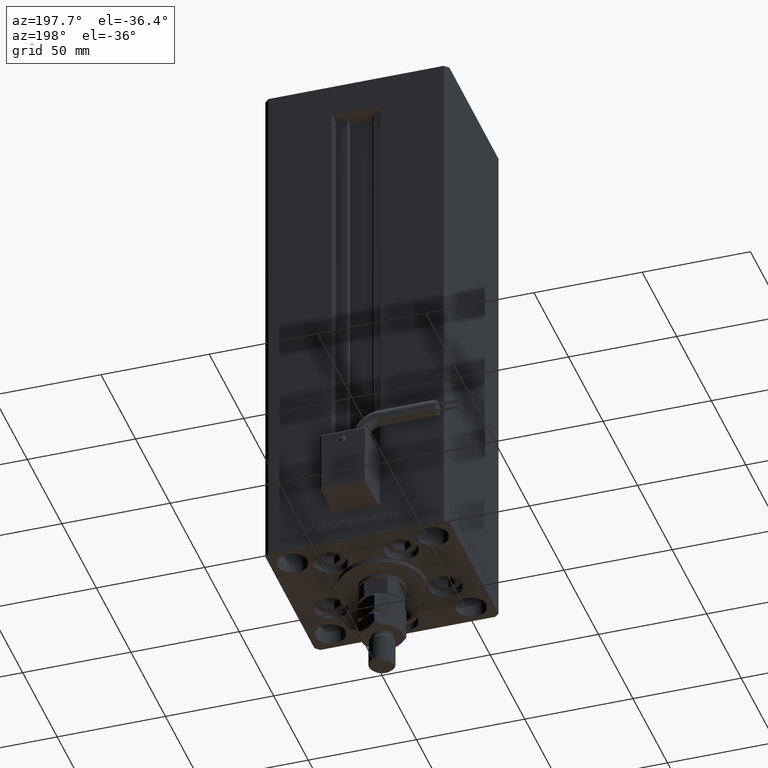
[diagram: clean part render]
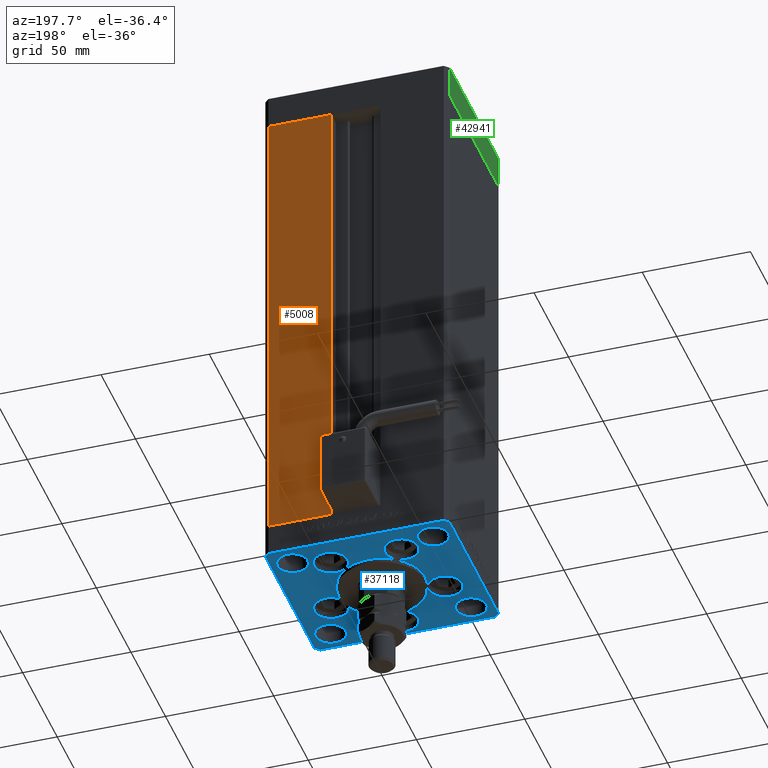
[diagram: same view with three faces highlighted in distinct colors, each labeled with its STEP entity id]
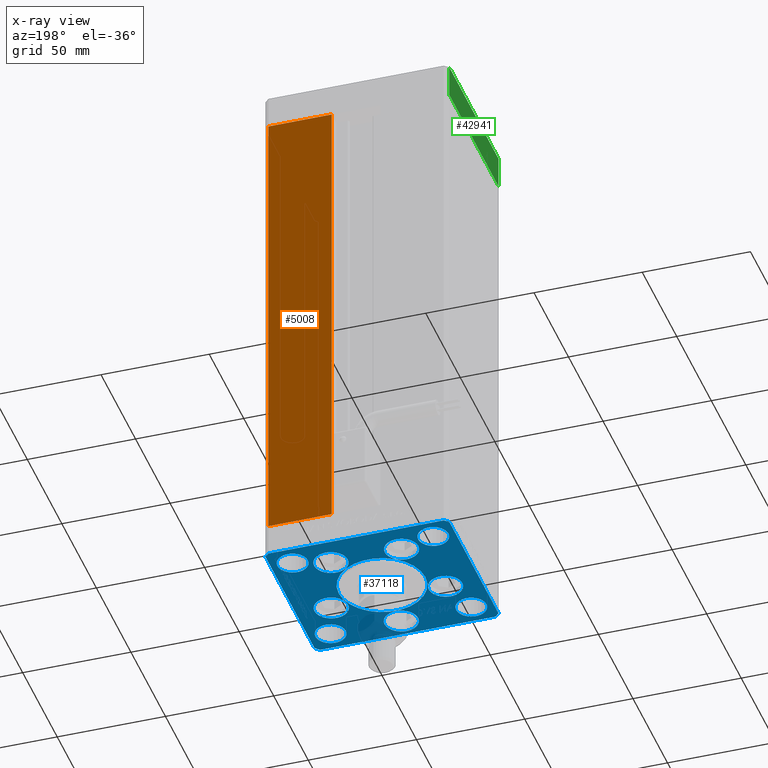
[diagram: x-ray of the same camera — body ghosted, the three highlighted faces saturated]
A machine part, auxiliary view with three faces highlighted in distinct colors.
The next image is the same camera in x-ray (body ghosted, the three faces saturated) — at least one of them is partly hidden behind the body in this view.
Their STEP definitions:

[orange] entity #5008 — the highlighted planar face has unit normal (-0, -1, 0).
#1305 = VECTOR ( 'NONE', #36980, 1000.000000000000000 ) ;
#5008 = ADVANCED_FACE ( 'NONE', ( #43550 ), #22188, .F. ) ;
#7420 = VECTOR ( 'NONE', #17291, 1000.000000000000000 ) ;
#7559 = CARTESIAN_POINT ( 'NONE',  ( -11.25000000000000000, 37.50000000000000000, 0.000000000000000000 ) ) ;
#9017 = VECTOR ( 'NONE', #15690, 1000.000000000000000 ) ;
#10798 = ORIENTED_EDGE ( 'NONE', *, *, #49036, .T. ) ;
#13461 = EDGE_LOOP ( 'NONE', ( #10798, #36431, #42698, #24186 ) ) ;
#14057 = DIRECTION ( 'NONE',  ( 1.000000000000000000, -2.372271420139223824E-16, 0.000000000000000000 ) ) ;
#14845 = DIRECTION ( 'NONE',  ( -2.372271420139223824E-16, -1.000000000000000000, 0.000000000000000000 ) ) ;
#15423 = CARTESIAN_POINT ( 'NONE',  ( -11.25000000000000000, 37.50000000000000000, 218.5000000000000000 ) ) ;
#15690 = DIRECTION ( 'NONE',  ( -1.000000000000000000, 2.372271420139223331E-16, 0.000000000000000000 ) ) ;
#16206 = LINE ( 'NONE', #32991, #7420 ) ;
#17291 = DIRECTION ( 'NONE',  ( -0.000000000000000000, -0.000000000000000000, -1.000000000000000000 ) ) ;
#22188 = PLANE ( 'NONE',  #45739 ) ;
#23121 = EDGE_CURVE ( 'NONE', #31401, #40909, #16206, .T. ) ;
#23569 = CARTESIAN_POINT ( 'NONE',  ( 11.25000000000000000, 37.50000000000000000, 0.000000000000000000 ) ) ;
#24186 = ORIENTED_EDGE ( 'NONE', *, *, #23121, .T. ) ;
#26901 = EDGE_CURVE ( 'NONE', #33288, #31401, #52493, .T. ) ;
#28172 = VECTOR ( 'NONE', #40605, 1000.000000000000000 ) ;
#31401 = VERTEX_POINT ( 'NONE', #34478 ) ;
#32647 = CARTESIAN_POINT ( 'NONE',  ( 11.25000000000000000, 37.50000000000000000, 0.000000000000000000 ) ) ;
#32991 = CARTESIAN_POINT ( 'NONE',  ( 40.50000000000000000, 37.50000000000000711, 218.5000000000000000 ) ) ;
#33288 = VERTEX_POINT ( 'NONE', #45874 ) ;
#34478 = CARTESIAN_POINT ( 'NONE',  ( 40.50000000000000000, 37.50000000000000711, 218.5000000000000000 ) ) ;
#36431 = ORIENTED_EDGE ( 'NONE', *, *, #50250, .T. ) ;
#36712 = VERTEX_POINT ( 'NONE', #23569 ) ;
#36980 = DIRECTION ( 'NONE',  ( -0.000000000000000000, -0.000000000000000000, 1.000000000000000000 ) ) ;
#38694 = CARTESIAN_POINT ( 'NONE',  ( -11.25000000000000000, 37.50000000000000000, 218.5000000000000000 ) ) ;
#40251 = LINE ( 'NONE', #32647, #1305 ) ;
#40605 = DIRECTION ( 'NONE',  ( 1.000000000000000000, 0.000000000000000000, 0.000000000000000000 ) ) ;
#40866 = LINE ( 'NONE', #7559, #9017 ) ;
#40909 = VERTEX_POINT ( 'NONE', #49875 ) ;
#42698 = ORIENTED_EDGE ( 'NONE', *, *, #26901, .T. ) ;
#43550 = FACE_OUTER_BOUND ( 'NONE', #13461, .T. ) ;
#45739 = AXIS2_PLACEMENT_3D ( 'NONE', #38694, #14845, #14057 ) ;
#45874 = CARTESIAN_POINT ( 'NONE',  ( 11.24999999999999289, 37.50000000000000000, 218.5000000000000000 ) ) ;
#49036 = EDGE_CURVE ( 'NONE', #40909, #36712, #40866, .T. ) ;
#49875 = CARTESIAN_POINT ( 'NONE',  ( 40.50000000000000000, 37.50000000000000711, 0.000000000000000000 ) ) ;
#50250 = EDGE_CURVE ( 'NONE', #36712, #33288, #40251, .T. ) ;
#52493 = LINE ( 'NONE', #15423, #28172 ) ;

[blue] entity #37118 — the highlighted planar face has unit normal (0, 0, -1).
#180 = CARTESIAN_POINT ( 'NONE',  ( -32.50000000000000000, -27.50000000000000355, 0.000000000000000000 ) ) ;
#259 = DIRECTION ( 'NONE',  ( 9.773090005503145261E-17, 1.000000000000000000, 0.000000000000000000 ) ) ;
#557 = DIRECTION ( 'NONE',  ( 0.000000000000000000, 0.000000000000000000, 1.000000000000000000 ) ) ;
#621 = CARTESIAN_POINT ( 'NONE',  ( 25.50000000000000355, 27.49999999999999645, 0.000000000000000000 ) ) ;
#1032 = DIRECTION ( 'NONE',  ( 9.773090005503134168E-17, -1.000000000000000000, 0.000000000000000000 ) ) ;
#1154 = DIRECTION ( 'NONE',  ( 1.000000000000000000, 0.000000000000000000, 0.000000000000000000 ) ) ;
#1342 = AXIS2_PLACEMENT_3D ( 'NONE', #40191, #12282, #8215 ) ;
#2129 = EDGE_LOOP ( 'NONE', ( #45760, #42101 ) ) ;
#2186 = CIRCLE ( 'NONE', #1342, 7.750000000000000000 ) ;
#2368 = EDGE_LOOP ( 'NONE', ( #9274, #2788 ) ) ;
#2534 = CIRCLE ( 'NONE', #13782, 6.999999999999999112 ) ;
#2788 = ORIENTED_EDGE ( 'NONE', *, *, #19354, .F. ) ;
#3053 = EDGE_CURVE ( 'NONE', #47317, #41366, #32634, .T. ) ;
#3257 = CIRCLE ( 'NONE', #21439, 7.750000000000000000 ) ;
#3262 = CARTESIAN_POINT ( 'NONE',  ( 26.39865316429777664, -9.333333333333330373, 0.000000000000000000 ) ) ;
#3364 = EDGE_CURVE ( 'NONE', #46158, #51417, #3257, .T. ) ;
#3582 = CARTESIAN_POINT ( 'NONE',  ( -40.50000000000000000, 37.49999999999997158, 0.000000000000000000 ) ) ;
#3737 = AXIS2_PLACEMENT_3D ( 'NONE', #13673, #38843, #4739 ) ;
#3970 = ORIENTED_EDGE ( 'NONE', *, *, #18820, .F. ) ;
#4111 = ORIENTED_EDGE ( 'NONE', *, *, #9771, .T. ) ;
#4588 = CARTESIAN_POINT ( 'NONE',  ( -32.50000000000000000, -27.50000000000000355, 0.000000000000000000 ) ) ;
#4731 = VERTEX_POINT ( 'NONE', #6774 ) ;
#4739 = DIRECTION ( 'NONE',  ( 1.000000000000000000, 0.000000000000000000, 0.000000000000000000 ) ) ;
#5457 = DIRECTION ( 'NONE',  ( 1.000000000000000000, 0.000000000000000000, 0.000000000000000000 ) ) ;
#5486 = EDGE_CURVE ( 'NONE', #4731, #48075, #24993, .T. ) ;
#5909 = DIRECTION ( 'NONE',  ( -1.000000000000000000, -4.283267841918041508E-16, 0.000000000000000000 ) ) ;
#6062 = FACE_BOUND ( 'NONE', #48269, .T. ) ;
#6074 = CARTESIAN_POINT ( 'NONE',  ( 0.000000000000000000, -28.00000000000000000, 0.000000000000000000 ) ) ;
#6370 = DIRECTION ( 'NONE',  ( 0.000000000000000000, 0.000000000000000000, 1.000000000000000000 ) ) ;
#6774 = CARTESIAN_POINT ( 'NONE',  ( 34.14865316429777664, -9.333333333333330373, 0.000000000000000000 ) ) ;
#6783 = EDGE_LOOP ( 'NONE', ( #11185, #52295 ) ) ;
#6846 = ORIENTED_EDGE ( 'NONE', *, *, #9426, .F. ) ;
#7106 = FACE_BOUND ( 'NONE', #22508, .T. ) ;
#7245 = LINE ( 'NONE', #40299, #26890 ) ;
#7806 = AXIS2_PLACEMENT_3D ( 'NONE', #34437, #43096, #5457 ) ;
#7972 = VERTEX_POINT ( 'NONE', #13449 ) ;
#8029 = VERTEX_POINT ( 'NONE', #21028 ) ;
#8215 = DIRECTION ( 'NONE',  ( 1.000000000000000000, 0.000000000000000000, 0.000000000000000000 ) ) ;
#8456 = EDGE_LOOP ( 'NONE', ( #45577, #22020 ) ) ;
#8926 = DIRECTION ( 'NONE',  ( 1.000000000000000000, 0.000000000000000000, 0.000000000000000000 ) ) ;
#8979 = ORIENTED_EDGE ( 'NONE', *, *, #42432, .T. ) ;
#9136 = AXIS2_PLACEMENT_3D ( 'NONE', #12214, #36862, #24135 ) ;
#9274 = ORIENTED_EDGE ( 'NONE', *, *, #25861, .F. ) ;
#9345 = AXIS2_PLACEMENT_3D ( 'NONE', #15818, #43982, #40465 ) ;
#9426 = EDGE_CURVE ( 'NONE', #45110, #52961, #21716, .T. ) ;
#9771 = EDGE_CURVE ( 'NONE', #42495, #12741, #7245, .T. ) ;
#9854 = CARTESIAN_POINT ( 'NONE',  ( 16.32291334290544071, 22.74999999999999289, 0.000000000000000000 ) ) ;
#9993 = AXIS2_PLACEMENT_3D ( 'NONE', #47338, #22969, #51905 ) ;
#10050 = VERTEX_POINT ( 'NONE', #11516 ) ;
#10204 = DIRECTION ( 'NONE',  ( 1.000000000000000000, 0.000000000000000000, 0.000000000000000000 ) ) ;
#10387 = FACE_BOUND ( 'NONE', #36247, .T. ) ;
#10507 = EDGE_CURVE ( 'NONE', #42883, #12441, #28650, .T. ) ;
#10649 = PLANE ( 'NONE',  #33762 ) ;
#11021 = LINE ( 'NONE', #43272, #15699 ) ;
#11185 = ORIENTED_EDGE ( 'NONE', *, *, #30568, .F. ) ;
#11189 = DIRECTION ( 'NONE',  ( 0.000000000000000000, 0.000000000000000000, 1.000000000000000000 ) ) ;
#11516 = CARTESIAN_POINT ( 'NONE',  ( -20.00000000000000000, -6.938893903907228378E-15, 0.000000000000000000 ) ) ;
#11891 = ORIENTED_EDGE ( 'NONE', *, *, #24183, .F. ) ;
#12214 = CARTESIAN_POINT ( 'NONE',  ( -26.39865316429777664, -9.333333333333330373, 0.000000000000000000 ) ) ;
#12282 = DIRECTION ( 'NONE',  ( 0.000000000000000000, 0.000000000000000000, 1.000000000000000000 ) ) ;
#12441 = VERTEX_POINT ( 'NONE', #30090 ) ;
#12741 = VERTEX_POINT ( 'NONE', #29485 ) ;
#12996 = CIRCLE ( 'NONE', #7806, 7.750000000000000000 ) ;
#13092 = EDGE_LOOP ( 'NONE', ( #22355, #3970 ) ) ;
#13107 = CARTESIAN_POINT ( 'NONE',  ( 7.750000000000000000, -28.00000000000000000, 0.000000000000000000 ) ) ;
#13357 = ORIENTED_EDGE ( 'NONE', *, *, #43701, .T. ) ;
#13449 = CARTESIAN_POINT ( 'NONE',  ( -34.14865316429777664, -9.333333333333328596, 0.000000000000000000 ) ) ;
#13673 = CARTESIAN_POINT ( 'NONE',  ( -16.32291334290544071, 22.74999999999999289, 0.000000000000000000 ) ) ;
#13782 = AXIS2_PLACEMENT_3D ( 'NONE', #180, #44838, #45373 ) ;
#13981 = CIRCLE ( 'NONE', #26965, 7.750000000000000000 ) ;
#14013 = LINE ( 'NONE', #14281, #52892 ) ;
#14281 = CARTESIAN_POINT ( 'NONE',  ( -42.50000000000000711, 35.50000000000000000, 0.000000000000000000 ) ) ;
#14317 = EDGE_CURVE ( 'NONE', #12441, #42883, #13981, .T. ) ;
#14456 = DIRECTION ( 'NONE',  ( 1.000000000000000000, 0.000000000000000000, 0.000000000000000000 ) ) ;
#15208 = EDGE_CURVE ( 'NONE', #12741, #8029, #23520, .T. ) ;
#15505 = EDGE_CURVE ( 'NONE', #29913, #42495, #14013, .T. ) ;
#15667 = LINE ( 'NONE', #24057, #32781 ) ;
#15699 = VECTOR ( 'NONE', #5909, 1000.000000000000000 ) ;
#15818 = CARTESIAN_POINT ( 'NONE',  ( -32.50000000000000000, 27.50000000000000711, 0.000000000000000000 ) ) ;
#15889 = CIRCLE ( 'NONE', #47881, 7.750000000000000000 ) ;
#16091 = CARTESIAN_POINT ( 'NONE',  ( -25.50000000000000355, 27.50000000000000711, 0.000000000000000000 ) ) ;
#16193 = CARTESIAN_POINT ( 'NONE',  ( 40.50000000000000711, 37.50000000000000711, 0.000000000000000000 ) ) ;
#16485 = DIRECTION ( 'NONE',  ( 1.000000000000000000, 0.000000000000000000, 0.000000000000000000 ) ) ;
#16569 = DIRECTION ( 'NONE',  ( 1.000000000000000000, 0.000000000000000000, 0.000000000000000000 ) ) ;
#16982 = EDGE_LOOP ( 'NONE', ( #30276, #11891 ) ) ;
#17151 = CARTESIAN_POINT ( 'NONE',  ( 32.50000000000000000, 27.49999999999999645, 0.000000000000000000 ) ) ;
#17304 = CARTESIAN_POINT ( 'NONE',  ( 42.50000000000000711, -35.49999999999992895, 0.000000000000000000 ) ) ;
#17404 = VERTEX_POINT ( 'NONE', #27213 ) ;
#17599 = ORIENTED_EDGE ( 'NONE', *, *, #14317, .F. ) ;
#17828 = CARTESIAN_POINT ( 'NONE',  ( 39.50000000000000000, -27.50000000000000355, 0.000000000000000000 ) ) ;
#18066 = VERTEX_POINT ( 'NONE', #36466 ) ;
#18327 = CARTESIAN_POINT ( 'NONE',  ( -26.39865316429777664, -9.333333333333330373, 0.000000000000000000 ) ) ;
#18511 = FACE_BOUND ( 'NONE', #6783, .T. ) ;
#18686 = DIRECTION ( 'NONE',  ( 0.000000000000000000, 0.000000000000000000, 1.000000000000000000 ) ) ;
#18820 = EDGE_CURVE ( 'NONE', #51417, #46158, #15889, .T. ) ;
#19135 = CARTESIAN_POINT ( 'NONE',  ( -25.50000000000000355, -27.50000000000000355, 0.000000000000000000 ) ) ;
#19191 = DIRECTION ( 'NONE',  ( 1.000000000000000000, 1.370645709413773283E-15, 0.000000000000000000 ) ) ;
#19289 = DIRECTION ( 'NONE',  ( 0.000000000000000000, 0.000000000000000000, 1.000000000000000000 ) ) ;
#19354 = EDGE_CURVE ( 'NONE', #7972, #33578, #34068, .T. ) ;
#19398 = DIRECTION ( 'NONE',  ( 1.000000000000000000, 0.000000000000000000, 0.000000000000000000 ) ) ;
#19845 = EDGE_CURVE ( 'NONE', #48189, #29913, #52840, .T. ) ;
#20212 = AXIS2_PLACEMENT_3D ( 'NONE', #18327, #30776, #10204 ) ;
#20478 = AXIS2_PLACEMENT_3D ( 'NONE', #48350, #27268, #19398 ) ;
#20511 = CARTESIAN_POINT ( 'NONE',  ( 0.000000000000000000, -28.00000000000000000, 0.000000000000000000 ) ) ;
#20537 = CIRCLE ( 'NONE', #9345, 6.999999999999999112 ) ;
#21028 = CARTESIAN_POINT ( 'NONE',  ( 40.50000000000001421, -37.49999999999992184, 0.000000000000000000 ) ) ;
#21439 = AXIS2_PLACEMENT_3D ( 'NONE', #9854, #19289, #51767 ) ;
#21692 = EDGE_CURVE ( 'NONE', #52961, #45110, #41963, .T. ) ;
#21712 = AXIS2_PLACEMENT_3D ( 'NONE', #4588, #557, #8926 ) ;
#21716 = CIRCLE ( 'NONE', #40719, 6.999999999999999112 ) ;
#22020 = ORIENTED_EDGE ( 'NONE', *, *, #33629, .F. ) ;
#22131 = CIRCLE ( 'NONE', #9136, 7.750000000000000000 ) ;
#22355 = ORIENTED_EDGE ( 'NONE', *, *, #3364, .F. ) ;
#22508 = EDGE_LOOP ( 'NONE', ( #23066, #17599 ) ) ;
#22547 = CARTESIAN_POINT ( 'NONE',  ( -42.50000000000000711, 35.50000000000000000, 0.000000000000000000 ) ) ;
#22749 = CARTESIAN_POINT ( 'NONE',  ( -32.50000000000000000, 27.50000000000000711, 0.000000000000000000 ) ) ;
#22909 = EDGE_CURVE ( 'NONE', #48457, #42804, #29895, .T. ) ;
#22969 = DIRECTION ( 'NONE',  ( 0.000000000000000000, 0.000000000000000000, 1.000000000000000000 ) ) ;
#23016 = CARTESIAN_POINT ( 'NONE',  ( -40.50000000000000000, 37.49999999999997158, 0.000000000000000000 ) ) ;
#23066 = ORIENTED_EDGE ( 'NONE', *, *, #10507, .F. ) ;
#23423 = DIRECTION ( 'NONE',  ( 1.000000000000000000, 0.000000000000000000, 0.000000000000000000 ) ) ;
#23520 = LINE ( 'NONE', #31369, #49467 ) ;
#23639 = FACE_BOUND ( 'NONE', #8456, .T. ) ;
#23848 = VERTEX_POINT ( 'NONE', #49570 ) ;
#24057 = CARTESIAN_POINT ( 'NONE',  ( 40.50000000000001421, -37.49999999999992184, 0.000000000000000000 ) ) ;
#24135 = DIRECTION ( 'NONE',  ( 1.000000000000000000, 0.000000000000000000, 0.000000000000000000 ) ) ;
#24183 = EDGE_CURVE ( 'NONE', #17404, #10050, #29812, .T. ) ;
#24419 = DIRECTION ( 'NONE',  ( 0.000000000000000000, 0.000000000000000000, 1.000000000000000000 ) ) ;
#24542 = CARTESIAN_POINT ( 'NONE',  ( -42.50000000000000000, -35.50000000000004263, 0.000000000000000000 ) ) ;
#24590 = EDGE_LOOP ( 'NONE', ( #4111, #36471, #41840, #50829, #13357, #8979, #32412, #53290 ) ) ;
#24882 = DIRECTION ( 'NONE',  ( 0.000000000000000000, 0.000000000000000000, 1.000000000000000000 ) ) ;
#24993 = CIRCLE ( 'NONE', #25893, 7.750000000000000000 ) ;
#25047 = EDGE_CURVE ( 'NONE', #10050, #17404, #41095, .T. ) ;
#25117 = DIRECTION ( 'NONE',  ( 0.000000000000000000, 0.000000000000000000, 1.000000000000000000 ) ) ;
#25861 = EDGE_CURVE ( 'NONE', #33578, #7972, #22131, .T. ) ;
#25893 = AXIS2_PLACEMENT_3D ( 'NONE', #3262, #36027, #51987 ) ;
#26379 = AXIS2_PLACEMENT_3D ( 'NONE', #33537, #24882, #16485 ) ;
#26890 = VECTOR ( 'NONE', #36492, 1000.000000000000000 ) ;
#26965 = AXIS2_PLACEMENT_3D ( 'NONE', #20511, #25117, #37305 ) ;
#27213 = CARTESIAN_POINT ( 'NONE',  ( 20.00000000000000000, -4.489600305612522259E-15, 0.000000000000000000 ) ) ;
#27268 = DIRECTION ( 'NONE',  ( 0.000000000000000000, 0.000000000000000000, 1.000000000000000000 ) ) ;
#27945 = CIRCLE ( 'NONE', #3737, 7.750000000000000000 ) ;
#28060 = CARTESIAN_POINT ( 'NONE',  ( -18.64865316429777664, -9.333333333333330373, 0.000000000000000000 ) ) ;
#28283 = VERTEX_POINT ( 'NONE', #16193 ) ;
#28650 = CIRCLE ( 'NONE', #32096, 7.750000000000000000 ) ;
#28979 = ORIENTED_EDGE ( 'NONE', *, *, #5486, .F. ) ;
#29301 = DIRECTION ( 'NONE',  ( 0.000000000000000000, 0.000000000000000000, 1.000000000000000000 ) ) ;
#29351 = EDGE_CURVE ( 'NONE', #41366, #47317, #34339, .T. ) ;
#29485 = CARTESIAN_POINT ( 'NONE',  ( -40.50000000000000711, -37.50000000000003553, 0.000000000000000000 ) ) ;
#29812 = CIRCLE ( 'NONE', #26379, 20.00000000000000000 ) ;
#29895 = CIRCLE ( 'NONE', #46308, 6.999999999999999112 ) ;
#29913 = VERTEX_POINT ( 'NONE', #22547 ) ;
#30090 = CARTESIAN_POINT ( 'NONE',  ( -7.750000000000000000, -28.00000000000000000, 0.000000000000000000 ) ) ;
#30276 = ORIENTED_EDGE ( 'NONE', *, *, #25047, .F. ) ;
#30434 = DIRECTION ( 'NONE',  ( -0.7071067811865524577, 0.7071067811865426878, 0.000000000000000000 ) ) ;
#30568 = EDGE_CURVE ( 'NONE', #42804, #48457, #20537, .T. ) ;
#30776 = DIRECTION ( 'NONE',  ( 0.000000000000000000, 0.000000000000000000, 1.000000000000000000 ) ) ;
#30876 = CARTESIAN_POINT ( 'NONE',  ( -24.07291334290544071, 22.74999999999999289, 0.000000000000000000 ) ) ;
#31369 = CARTESIAN_POINT ( 'NONE',  ( -40.50000000000000711, -37.50000000000003553, 0.000000000000000000 ) ) ;
#31778 = EDGE_CURVE ( 'NONE', #40847, #37765, #50042, .T. ) ;
#32096 = AXIS2_PLACEMENT_3D ( 'NONE', #6074, #11189, #35565 ) ;
#32180 = DIRECTION ( 'NONE',  ( 0.7071067811865474617, 0.7071067811865474617, 0.000000000000000000 ) ) ;
#32412 = ORIENTED_EDGE ( 'NONE', *, *, #19845, .T. ) ;
#32634 = CIRCLE ( 'NONE', #48194, 6.999999999999999112 ) ;
#32781 = VECTOR ( 'NONE', #32180, 1000.000000000000114 ) ;
#33125 = CARTESIAN_POINT ( 'NONE',  ( 8.572913342905442491, 22.74999999999999289, 0.000000000000000000 ) ) ;
#33537 = CARTESIAN_POINT ( 'NONE',  ( 0.000000000000000000, -6.938893903907228378E-15, 0.000000000000000000 ) ) ;
#33578 = VERTEX_POINT ( 'NONE', #28060 ) ;
#33629 = EDGE_CURVE ( 'NONE', #18066, #50104, #2534, .T. ) ;
#33648 = DIRECTION ( 'NONE',  ( 0.000000000000000000, 0.000000000000000000, 1.000000000000000000 ) ) ;
#33762 = AXIS2_PLACEMENT_3D ( 'NONE', #43417, #51529, #14456 ) ;
#33844 = EDGE_CURVE ( 'NONE', #8029, #40847, #15667, .T. ) ;
#33906 = CARTESIAN_POINT ( 'NONE',  ( 32.50000000000000000, 27.49999999999999645, 0.000000000000000000 ) ) ;
#34068 = CIRCLE ( 'NONE', #20212, 7.750000000000000000 ) ;
#34339 = CIRCLE ( 'NONE', #20478, 6.999999999999999112 ) ;
#34437 = CARTESIAN_POINT ( 'NONE',  ( 26.39865316429777664, -9.333333333333330373, 0.000000000000000000 ) ) ;
#34769 = VECTOR ( 'NONE', #30434, 1000.000000000000000 ) ;
#35030 = FACE_BOUND ( 'NONE', #2129, .T. ) ;
#35196 = DIRECTION ( 'NONE',  ( 1.000000000000000000, 0.000000000000000000, 0.000000000000000000 ) ) ;
#35565 = DIRECTION ( 'NONE',  ( 1.000000000000000000, 0.000000000000000000, 0.000000000000000000 ) ) ;
#35959 = CARTESIAN_POINT ( 'NONE',  ( 42.50000000000001421, 35.50000000000002132, 0.000000000000000000 ) ) ;
#36027 = DIRECTION ( 'NONE',  ( 0.000000000000000000, 0.000000000000000000, 1.000000000000000000 ) ) ;
#36247 = EDGE_LOOP ( 'NONE', ( #28979, #38894 ) ) ;
#36466 = CARTESIAN_POINT ( 'NONE',  ( -39.50000000000000000, -27.50000000000000355, 0.000000000000000000 ) ) ;
#36471 = ORIENTED_EDGE ( 'NONE', *, *, #15208, .T. ) ;
#36492 = DIRECTION ( 'NONE',  ( 0.7071067811865487940, -0.7071067811865463515, 0.000000000000000000 ) ) ;
#36862 = DIRECTION ( 'NONE',  ( 0.000000000000000000, 0.000000000000000000, 1.000000000000000000 ) ) ;
#37118 = ADVANCED_FACE ( 'NONE', ( #47469, #43158, #44211, #10387, #7106, #52042, #6062, #18511, #23639, #35030, #39355 ), #10649, .T. ) ;
#37305 = DIRECTION ( 'NONE',  ( 1.000000000000000000, 0.000000000000000000, 0.000000000000000000 ) ) ;
#37645 = EDGE_CURVE ( 'NONE', #50104, #18066, #48465, .T. ) ;
#37765 = VERTEX_POINT ( 'NONE', #35959 ) ;
#37932 = CARTESIAN_POINT ( 'NONE',  ( 18.64865316429777664, -9.333333333333328596, 0.000000000000000000 ) ) ;
#38843 = DIRECTION ( 'NONE',  ( 0.000000000000000000, 0.000000000000000000, 1.000000000000000000 ) ) ;
#38894 = ORIENTED_EDGE ( 'NONE', *, *, #39855, .F. ) ;
#39090 = LINE ( 'NONE', #39622, #34769 ) ;
#39355 = FACE_OUTER_BOUND ( 'NONE', #24590, .T. ) ;
#39622 = CARTESIAN_POINT ( 'NONE',  ( 42.50000000000001421, 35.50000000000002132, 0.000000000000000000 ) ) ;
#39674 = CARTESIAN_POINT ( 'NONE',  ( 32.50000000000000000, -27.50000000000000355, 0.000000000000000000 ) ) ;
#39855 = EDGE_CURVE ( 'NONE', #48075, #4731, #12996, .T. ) ;
#40191 = CARTESIAN_POINT ( 'NONE',  ( -16.32291334290544071, 22.74999999999999289, 0.000000000000000000 ) ) ;
#40299 = CARTESIAN_POINT ( 'NONE',  ( -42.50000000000000000, -35.50000000000004263, 0.000000000000000000 ) ) ;
#40465 = DIRECTION ( 'NONE',  ( 1.000000000000000000, 0.000000000000000000, 0.000000000000000000 ) ) ;
#40719 = AXIS2_PLACEMENT_3D ( 'NONE', #33906, #29301, #1154 ) ;
#40847 = VERTEX_POINT ( 'NONE', #41776 ) ;
#40888 = ORIENTED_EDGE ( 'NONE', *, *, #46744, .F. ) ;
#40913 = CARTESIAN_POINT ( 'NONE',  ( 39.50000000000000000, 27.49999999999999645, 0.000000000000000000 ) ) ;
#41095 = CIRCLE ( 'NONE', #9993, 20.00000000000000000 ) ;
#41238 = ORIENTED_EDGE ( 'NONE', *, *, #51396, .F. ) ;
#41366 = VERTEX_POINT ( 'NONE', #44017 ) ;
#41776 = CARTESIAN_POINT ( 'NONE',  ( 42.50000000000000711, -35.49999999999992895, 0.000000000000000000 ) ) ;
#41840 = ORIENTED_EDGE ( 'NONE', *, *, #33844, .T. ) ;
#41963 = CIRCLE ( 'NONE', #50563, 6.999999999999999112 ) ;
#42101 = ORIENTED_EDGE ( 'NONE', *, *, #29351, .F. ) ;
#42432 = EDGE_CURVE ( 'NONE', #28283, #48189, #11021, .T. ) ;
#42495 = VERTEX_POINT ( 'NONE', #24542 ) ;
#42804 = VERTEX_POINT ( 'NONE', #16091 ) ;
#42883 = VERTEX_POINT ( 'NONE', #13107 ) ;
#43096 = DIRECTION ( 'NONE',  ( 0.000000000000000000, 0.000000000000000000, 1.000000000000000000 ) ) ;
#43158 = FACE_BOUND ( 'NONE', #49603, .T. ) ;
#43272 = CARTESIAN_POINT ( 'NONE',  ( 40.50000000000000711, 37.50000000000000711, 0.000000000000000000 ) ) ;
#43417 = CARTESIAN_POINT ( 'NONE',  ( 0.000000000000000000, 0.000000000000000000, 0.000000000000000000 ) ) ;
#43701 = EDGE_CURVE ( 'NONE', #37765, #28283, #39090, .T. ) ;
#43982 = DIRECTION ( 'NONE',  ( 0.000000000000000000, 0.000000000000000000, 1.000000000000000000 ) ) ;
#44017 = CARTESIAN_POINT ( 'NONE',  ( 25.50000000000000355, -27.50000000000000355, 0.000000000000000000 ) ) ;
#44211 = FACE_BOUND ( 'NONE', #13092, .T. ) ;
#44838 = DIRECTION ( 'NONE',  ( 0.000000000000000000, 0.000000000000000000, 1.000000000000000000 ) ) ;
#44944 = CARTESIAN_POINT ( 'NONE',  ( 24.07291334290544071, 22.74999999999999289, 0.000000000000000000 ) ) ;
#45005 = DIRECTION ( 'NONE',  ( -0.7071067811865536790, -0.7071067811865414665, 0.000000000000000000 ) ) ;
#45110 = VERTEX_POINT ( 'NONE', #621 ) ;
#45373 = DIRECTION ( 'NONE',  ( 1.000000000000000000, 0.000000000000000000, 0.000000000000000000 ) ) ;
#45577 = ORIENTED_EDGE ( 'NONE', *, *, #37645, .F. ) ;
#45760 = ORIENTED_EDGE ( 'NONE', *, *, #3053, .F. ) ;
#46098 = DIRECTION ( 'NONE',  ( 1.000000000000000000, 0.000000000000000000, 0.000000000000000000 ) ) ;
#46158 = VERTEX_POINT ( 'NONE', #44944 ) ;
#46308 = AXIS2_PLACEMENT_3D ( 'NONE', #22749, #18686, #35196 ) ;
#46744 = EDGE_CURVE ( 'NONE', #48095, #23848, #27945, .T. ) ;
#47317 = VERTEX_POINT ( 'NONE', #17828 ) ;
#47338 = CARTESIAN_POINT ( 'NONE',  ( 0.000000000000000000, -6.938893903907228378E-15, 0.000000000000000000 ) ) ;
#47469 = FACE_BOUND ( 'NONE', #16982, .T. ) ;
#47881 = AXIS2_PLACEMENT_3D ( 'NONE', #49043, #24419, #16569 ) ;
#48075 = VERTEX_POINT ( 'NONE', #37932 ) ;
#48095 = VERTEX_POINT ( 'NONE', #30876 ) ;
#48189 = VERTEX_POINT ( 'NONE', #23016 ) ;
#48194 = AXIS2_PLACEMENT_3D ( 'NONE', #39674, #6370, #23423 ) ;
#48269 = EDGE_LOOP ( 'NONE', ( #50915, #6846 ) ) ;
#48350 = CARTESIAN_POINT ( 'NONE',  ( 32.50000000000000000, -27.50000000000000355, 0.000000000000000000 ) ) ;
#48457 = VERTEX_POINT ( 'NONE', #53207 ) ;
#48465 = CIRCLE ( 'NONE', #21712, 6.999999999999999112 ) ;
#49043 = CARTESIAN_POINT ( 'NONE',  ( 16.32291334290544071, 22.74999999999999289, 0.000000000000000000 ) ) ;
#49467 = VECTOR ( 'NONE', #19191, 1000.000000000000000 ) ;
#49570 = CARTESIAN_POINT ( 'NONE',  ( -8.572913342905440715, 22.74999999999999289, 0.000000000000000000 ) ) ;
#49603 = EDGE_LOOP ( 'NONE', ( #41238, #40888 ) ) ;
#49660 = VECTOR ( 'NONE', #45005, 1000.000000000000000 ) ;
#49983 = VECTOR ( 'NONE', #259, 1000.000000000000000 ) ;
#50042 = LINE ( 'NONE', #17304, #49983 ) ;
#50104 = VERTEX_POINT ( 'NONE', #19135 ) ;
#50563 = AXIS2_PLACEMENT_3D ( 'NONE', #17151, #33648, #46098 ) ;
#50829 = ORIENTED_EDGE ( 'NONE', *, *, #31778, .T. ) ;
#50915 = ORIENTED_EDGE ( 'NONE', *, *, #21692, .F. ) ;
#51396 = EDGE_CURVE ( 'NONE', #23848, #48095, #2186, .T. ) ;
#51417 = VERTEX_POINT ( 'NONE', #33125 ) ;
#51529 = DIRECTION ( 'NONE',  ( -0.000000000000000000, 0.000000000000000000, 1.000000000000000000 ) ) ;
#51767 = DIRECTION ( 'NONE',  ( 1.000000000000000000, 0.000000000000000000, 0.000000000000000000 ) ) ;
#51905 = DIRECTION ( 'NONE',  ( 1.000000000000000000, 0.000000000000000000, 0.000000000000000000 ) ) ;
#51987 = DIRECTION ( 'NONE',  ( 1.000000000000000000, 0.000000000000000000, 0.000000000000000000 ) ) ;
#52042 = FACE_BOUND ( 'NONE', #2368, .T. ) ;
#52295 = ORIENTED_EDGE ( 'NONE', *, *, #22909, .F. ) ;
#52840 = LINE ( 'NONE', #3582, #49660 ) ;
#52892 = VECTOR ( 'NONE', #1032, 1000.000000000000000 ) ;
#52961 = VERTEX_POINT ( 'NONE', #40913 ) ;
#53207 = CARTESIAN_POINT ( 'NONE',  ( -39.50000000000000000, 27.50000000000000711, 0.000000000000000000 ) ) ;
#53290 = ORIENTED_EDGE ( 'NONE', *, *, #15505, .T. ) ;

[green] entity #42941 — the highlighted planar face has unit normal (-1, -0, 0).
#1416 = VERTEX_POINT ( 'NONE', #35585 ) ;
#2698 = CARTESIAN_POINT ( 'NONE',  ( -42.50000000000000000, -35.50000000000000711, -15.00000000000000000 ) ) ;
#2938 = VECTOR ( 'NONE', #50306, 1000.000000000000000 ) ;
#7546 = DIRECTION ( 'NONE',  ( 0.000000000000000000, 0.000000000000000000, 1.000000000000000000 ) ) ;
#7922 = AXIS2_PLACEMENT_3D ( 'NONE', #30955, #14960, #34487 ) ;
#8524 = ORIENTED_EDGE ( 'NONE', *, *, #27691, .F. ) ;
#11363 = CARTESIAN_POINT ( 'NONE',  ( -42.50000000000000711, 35.49999999999997158, -15.00000000000000000 ) ) ;
#12682 = VECTOR ( 'NONE', #18184, 1000.000000000000000 ) ;
#14362 = VECTOR ( 'NONE', #7546, 1000.000000000000000 ) ;
#14960 = DIRECTION ( 'NONE',  ( -1.000000000000000000, -9.773090005503140331E-17, 0.000000000000000000 ) ) ;
#16805 = ORIENTED_EDGE ( 'NONE', *, *, #49543, .T. ) ;
#16984 = VERTEX_POINT ( 'NONE', #2698 ) ;
#17207 = EDGE_LOOP ( 'NONE', ( #8524, #26625, #16805, #41033 ) ) ;
#18184 = DIRECTION ( 'NONE',  ( 9.773090005503140331E-17, -1.000000000000000000, 0.000000000000000000 ) ) ;
#19469 = LINE ( 'NONE', #23806, #14362 ) ;
#22993 = EDGE_CURVE ( 'NONE', #16984, #40492, #19469, .T. ) ;
#23806 = CARTESIAN_POINT ( 'NONE',  ( -42.50000000000000000, -35.50000000000000711, -15.00000000000000000 ) ) ;
#24895 = VERTEX_POINT ( 'NONE', #11363 ) ;
#25304 = CARTESIAN_POINT ( 'NONE',  ( -42.50000000000000711, 35.49999999999997158, -15.00000000000000000 ) ) ;
#26625 = ORIENTED_EDGE ( 'NONE', *, *, #48342, .F. ) ;
#27691 = EDGE_CURVE ( 'NONE', #1416, #40492, #47404, .T. ) ;
#30955 = CARTESIAN_POINT ( 'NONE',  ( -42.50000000000000711, 35.49999999999997158, -15.00000000000000000 ) ) ;
#33417 = LINE ( 'NONE', #25304, #46226 ) ;
#33802 = CARTESIAN_POINT ( 'NONE',  ( -42.50000000000000711, 35.49999999999997158, -15.00000000000000000 ) ) ;
#34073 = LINE ( 'NONE', #33802, #2938 ) ;
#34487 = DIRECTION ( 'NONE',  ( 9.773090005503140331E-17, -1.000000000000000000, 0.000000000000000000 ) ) ;
#35013 = FACE_OUTER_BOUND ( 'NONE', #17207, .T. ) ;
#35277 = PLANE ( 'NONE',  #7922 ) ;
#35585 = CARTESIAN_POINT ( 'NONE',  ( -42.50000000000000711, 35.49999999999997158, 0.000000000000000000 ) ) ;
#40492 = VERTEX_POINT ( 'NONE', #52381 ) ;
#41033 = ORIENTED_EDGE ( 'NONE', *, *, #22993, .T. ) ;
#41822 = DIRECTION ( 'NONE',  ( 9.773090005503140331E-17, -1.000000000000000000, 0.000000000000000000 ) ) ;
#42941 = ADVANCED_FACE ( 'NONE', ( #35013 ), #35277, .T. ) ;
#46226 = VECTOR ( 'NONE', #41822, 1000.000000000000000 ) ;
#47404 = LINE ( 'NONE', #47660, #12682 ) ;
#47660 = CARTESIAN_POINT ( 'NONE',  ( -42.50000000000000711, 35.49999999999997158, 0.000000000000000000 ) ) ;
#48342 = EDGE_CURVE ( 'NONE', #24895, #1416, #34073, .T. ) ;
#49543 = EDGE_CURVE ( 'NONE', #24895, #16984, #33417, .T. ) ;
#50306 = DIRECTION ( 'NONE',  ( 0.000000000000000000, 0.000000000000000000, 1.000000000000000000 ) ) ;
#52381 = CARTESIAN_POINT ( 'NONE',  ( -42.50000000000000000, -35.50000000000000711, 0.000000000000000000 ) ) ;